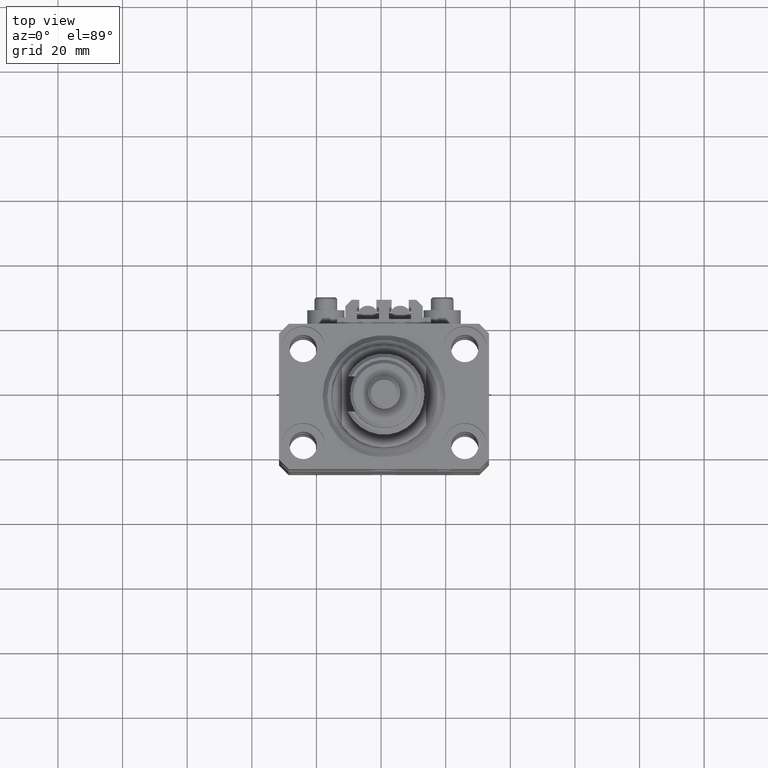
[diagram: clean part render]
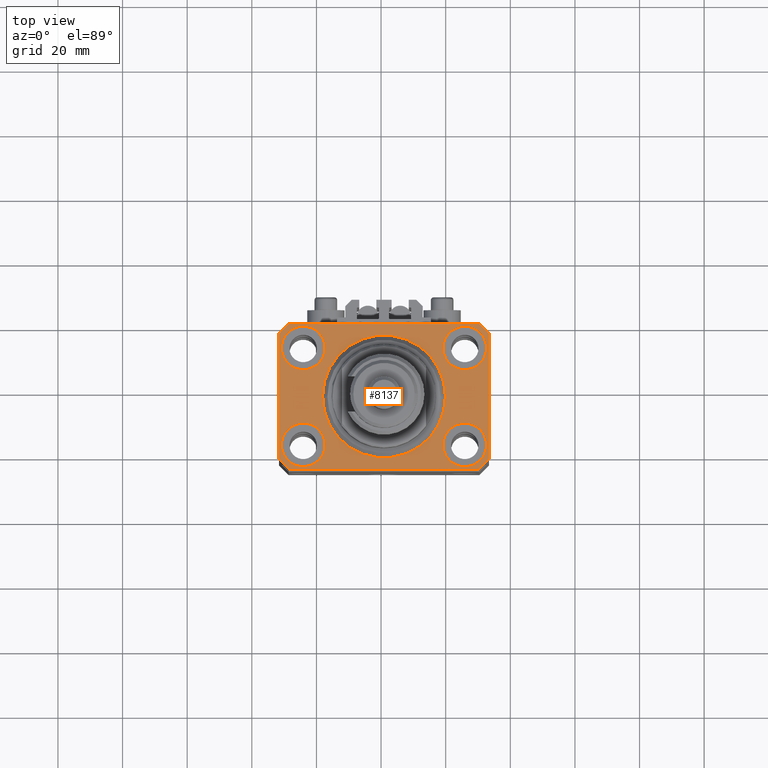
[diagram: same view with one face highlighted and labeled with its STEP entity id]
A machine part, top view. The second image highlights one B-rep face of the part: STEP entity #8137.
In plain terms, the highlighted planar face has unit normal (0, 0, 1).
Its self-contained STEP definition (entity closure, byte-faithful):
#85 = CARTESIAN_POINT ( 'NONE',  ( -25.00000000000000355, -15.00000000000000000, 0.000000000000000000 ) ) ;
#215 = EDGE_CURVE ( 'NONE', #37473, #30447, #42066, .T. ) ;
#601 = CARTESIAN_POINT ( 'NONE',  ( 25.00000000000000355, -15.00000000000000000, 0.000000000000000000 ) ) ;
#603 = CARTESIAN_POINT ( 'NONE',  ( 29.49999999999707967, 22.49999999999951328, 0.000000000000000000 ) ) ;
#609 = ORIENTED_EDGE ( 'NONE', *, *, #1809, .T. ) ;
#710 = CARTESIAN_POINT ( 'NONE',  ( -25.00000000000000355, -15.00000000000000000, 0.000000000000000000 ) ) ;
#771 = DIRECTION ( 'NONE',  ( 0.7071067811865474617, -0.7071067811865474617, 0.000000000000000000 ) ) ;
#1450 = VECTOR ( 'NONE', #771, 1000.000000000000114 ) ;
#1531 = CARTESIAN_POINT ( 'NONE',  ( -31.75000000004154899, -15.00000000000000000, 0.000000000000000000 ) ) ;
#1593 = DIRECTION ( 'NONE',  ( 0.000000000000000000, 0.000000000000000000, 1.000000000000000000 ) ) ;
#1809 = EDGE_CURVE ( 'NONE', #18172, #38828, #32464, .T. ) ;
#1980 = EDGE_CURVE ( 'NONE', #33427, #31919, #17866, .T. ) ;
#2312 = DIRECTION ( 'NONE',  ( 1.334402673828349134E-14, 1.000000000000000000, 0.000000000000000000 ) ) ;
#2717 = DIRECTION ( 'NONE',  ( -0.7071067811865352493, 0.7071067811865597852, 0.000000000000000000 ) ) ;
#3058 = EDGE_CURVE ( 'NONE', #3065, #40067, #12286, .T. ) ;
#3065 = VERTEX_POINT ( 'NONE', #3991 ) ;
#3074 = EDGE_CURVE ( 'NONE', #40067, #26871, #47875, .T. ) ;
#3204 = CIRCLE ( 'NONE', #19782, 6.750000000041541881 ) ;
#3522 = DIRECTION ( 'NONE',  ( 1.000000000000000000, 1.176083712526788232E-16, 0.000000000000000000 ) ) ;
#3676 = DIRECTION ( 'NONE',  ( 0.000000000000000000, 0.000000000000000000, 1.000000000000000000 ) ) ;
#3865 = ORIENTED_EDGE ( 'NONE', *, *, #8530, .T. ) ;
#3893 = CARTESIAN_POINT ( 'NONE',  ( -32.49999999999650413, -19.49999999999949907, 0.000000000000000000 ) ) ;
#3991 = CARTESIAN_POINT ( 'NONE',  ( 29.49999999999707967, 22.49999999999951328, 0.000000000000000000 ) ) ;
#4011 = CARTESIAN_POINT ( 'NONE',  ( 0.000000000000000000, 0.000000000000000000, 0.000000000000000000 ) ) ;
#4506 = EDGE_LOOP ( 'NONE', ( #36971, #8954 ) ) ;
#4559 = ORIENTED_EDGE ( 'NONE', *, *, #40001, .T. ) ;
#4616 = CARTESIAN_POINT ( 'NONE',  ( -31.75000000002253842, 15.00000000000000000, 0.000000000000000000 ) ) ;
#4795 = DIRECTION ( 'NONE',  ( 0.000000000000000000, -1.000000000000000000, 0.000000000000000000 ) ) ;
#5742 = CARTESIAN_POINT ( 'NONE',  ( -32.49999999999650413, -19.49999999999949907, 0.000000000000000000 ) ) ;
#6137 = EDGE_CURVE ( 'NONE', #30447, #37473, #29822, .T. ) ;
#6479 = VERTEX_POINT ( 'NONE', #1531 ) ;
#6580 = ORIENTED_EDGE ( 'NONE', *, *, #1980, .T. ) ;
#6653 = EDGE_CURVE ( 'NONE', #18545, #47043, #42324, .T. ) ;
#6856 = LINE ( 'NONE', #19070, #39891 ) ;
#7446 = ORIENTED_EDGE ( 'NONE', *, *, #22483, .T. ) ;
#7484 = CARTESIAN_POINT ( 'NONE',  ( -29.49999999999650413, -22.49999999999949907, 0.000000000000000000 ) ) ;
#7496 = AXIS2_PLACEMENT_3D ( 'NONE', #27907, #11288, #35464 ) ;
#7612 = CARTESIAN_POINT ( 'NONE',  ( 31.74999999995845101, 15.00000000000000888, 0.000000000000000000 ) ) ;
#7658 = LINE ( 'NONE', #7903, #40514 ) ;
#7903 = CARTESIAN_POINT ( 'NONE',  ( -32.49999999999650413, 19.49999999999949907, 0.000000000000000000 ) ) ;
#8137 = ADVANCED_FACE ( 'NONE', ( #24418, #40053, #20537, #19505, #43671, #39526 ), #48083, .T. ) ;
#8441 = CARTESIAN_POINT ( 'NONE',  ( -29.49999999999650413, 22.49999999999949907, 0.000000000000000000 ) ) ;
#8504 = DIRECTION ( 'NONE',  ( 1.000000000000000000, 0.000000000000000000, 0.000000000000000000 ) ) ;
#8530 = EDGE_CURVE ( 'NONE', #37669, #3065, #6856, .T. ) ;
#8875 = DIRECTION ( 'NONE',  ( 1.000000000000000000, 0.000000000000000000, 0.000000000000000000 ) ) ;
#8954 = ORIENTED_EDGE ( 'NONE', *, *, #215, .F. ) ;
#9120 = AXIS2_PLACEMENT_3D ( 'NONE', #10391, #38713, #26232 ) ;
#9406 = ORIENTED_EDGE ( 'NONE', *, *, #3074, .T. ) ;
#9698 = DIRECTION ( 'NONE',  ( 1.000000000000000000, 0.000000000000000000, 0.000000000000000000 ) ) ;
#9943 = AXIS2_PLACEMENT_3D ( 'NONE', #43069, #40723, #8504 ) ;
#10391 = CARTESIAN_POINT ( 'NONE',  ( 24.99999999999999645, 15.00000000000000888, 0.000000000000000000 ) ) ;
#11254 = VERTEX_POINT ( 'NONE', #48063 ) ;
#11288 = DIRECTION ( 'NONE',  ( 0.000000000000000000, 0.000000000000000000, 1.000000000000000000 ) ) ;
#11397 = EDGE_CURVE ( 'NONE', #31919, #37669, #29074, .T. ) ;
#12286 = LINE ( 'NONE', #603, #31375 ) ;
#12700 = EDGE_CURVE ( 'NONE', #47043, #18545, #24474, .T. ) ;
#14905 = CARTESIAN_POINT ( 'NONE',  ( -32.49999999999650413, 19.49999999999949907, 0.000000000000000000 ) ) ;
#14939 = CIRCLE ( 'NONE', #7496, 6.749999999958452790 ) ;
#14971 = AXIS2_PLACEMENT_3D ( 'NONE', #39270, #3676, #40296 ) ;
#14984 = EDGE_CURVE ( 'NONE', #45646, #6479, #44480, .T. ) ;
#15258 = CARTESIAN_POINT ( 'NONE',  ( -18.24999999995846167, -15.00000000000000000, 0.000000000000000000 ) ) ;
#15293 = CARTESIAN_POINT ( 'NONE',  ( 18.25000000002253842, -15.00000000000000000, 0.000000000000000000 ) ) ;
#16442 = DIRECTION ( 'NONE',  ( 1.000000000000000000, 0.000000000000000000, 0.000000000000000000 ) ) ;
#16469 = CARTESIAN_POINT ( 'NONE',  ( 25.00000000000000355, -15.00000000000000000, 0.000000000000000000 ) ) ;
#16729 = DIRECTION ( 'NONE',  ( 1.000000000000000000, 0.000000000000000000, 0.000000000000000000 ) ) ;
#17836 = EDGE_LOOP ( 'NONE', ( #20415, #18107 ) ) ;
#17866 = LINE ( 'NONE', #42546, #42139 ) ;
#18107 = ORIENTED_EDGE ( 'NONE', *, *, #47650, .F. ) ;
#18172 = VERTEX_POINT ( 'NONE', #5742 ) ;
#18295 = EDGE_LOOP ( 'NONE', ( #39579, #49934 ) ) ;
#18545 = VERTEX_POINT ( 'NONE', #44402 ) ;
#18634 = DIRECTION ( 'NONE',  ( 0.7071067811865483499, 0.7071067811865466846, 0.000000000000000000 ) ) ;
#19070 = CARTESIAN_POINT ( 'NONE',  ( 32.49999999999702993, 19.49999999999945999, 0.000000000000000000 ) ) ;
#19505 = FACE_BOUND ( 'NONE', #21359, .T. ) ;
#19782 = AXIS2_PLACEMENT_3D ( 'NONE', #85, #32540, #8875 ) ;
#19851 = DIRECTION ( 'NONE',  ( 1.000000000000000000, 0.000000000000000000, 0.000000000000000000 ) ) ;
#20415 = ORIENTED_EDGE ( 'NONE', *, *, #47351, .F. ) ;
#20537 = FACE_BOUND ( 'NONE', #18295, .T. ) ;
#21359 = EDGE_LOOP ( 'NONE', ( #39181, #30833 ) ) ;
#22181 = VECTOR ( 'NONE', #3522, 1000.000000000000000 ) ;
#22483 = EDGE_CURVE ( 'NONE', #26871, #18172, #7658, .T. ) ;
#22740 = DIRECTION ( 'NONE',  ( 1.000000000000000000, 0.000000000000000000, 0.000000000000000000 ) ) ;
#23051 = VECTOR ( 'NONE', #43472, 1000.000000000000114 ) ;
#23241 = LINE ( 'NONE', #34699, #22181 ) ;
#23481 = DIRECTION ( 'NONE',  ( 0.000000000000000000, 0.000000000000000000, 1.000000000000000000 ) ) ;
#23520 = DIRECTION ( 'NONE',  ( 0.000000000000000000, 0.000000000000000000, 1.000000000000000000 ) ) ;
#24418 = FACE_BOUND ( 'NONE', #40694, .T. ) ;
#24474 = CIRCLE ( 'NONE', #26135, 6.750000000022533087 ) ;
#24811 = CIRCLE ( 'NONE', #45557, 6.749999999977465137 ) ;
#26135 = AXIS2_PLACEMENT_3D ( 'NONE', #26387, #23520, #22740 ) ;
#26232 = DIRECTION ( 'NONE',  ( 1.000000000000000000, 0.000000000000000000, 0.000000000000000000 ) ) ;
#26387 = CARTESIAN_POINT ( 'NONE',  ( -25.00000000000000355, 15.00000000000000000, 0.000000000000000000 ) ) ;
#26871 = VERTEX_POINT ( 'NONE', #14905 ) ;
#27907 = CARTESIAN_POINT ( 'NONE',  ( 24.99999999999999645, 15.00000000000000888, 0.000000000000000000 ) ) ;
#29074 = LINE ( 'NONE', #49078, #36841 ) ;
#29822 = CIRCLE ( 'NONE', #43967, 19.00000000000000000 ) ;
#30122 = ORIENTED_EDGE ( 'NONE', *, *, #3058, .T. ) ;
#30447 = VERTEX_POINT ( 'NONE', #38334 ) ;
#30833 = ORIENTED_EDGE ( 'NONE', *, *, #12700, .F. ) ;
#31375 = VECTOR ( 'NONE', #31780, 1000.000000000000000 ) ;
#31535 = CIRCLE ( 'NONE', #9120, 6.749999999958452790 ) ;
#31780 = DIRECTION ( 'NONE',  ( -1.000000000000000000, -2.352167425053553784E-16, 0.000000000000000000 ) ) ;
#31919 = VERTEX_POINT ( 'NONE', #32735 ) ;
#31946 = CARTESIAN_POINT ( 'NONE',  ( -19.00000000000000000, 2.326828918379970970E-15, 0.000000000000000000 ) ) ;
#32290 = DIRECTION ( 'NONE',  ( 0.000000000000000000, 0.000000000000000000, 1.000000000000000000 ) ) ;
#32464 = LINE ( 'NONE', #3893, #1450 ) ;
#32540 = DIRECTION ( 'NONE',  ( 0.000000000000000000, 0.000000000000000000, 1.000000000000000000 ) ) ;
#32735 = CARTESIAN_POINT ( 'NONE',  ( 32.49999999999651124, -19.49999999999949196, 0.000000000000000000 ) ) ;
#33289 = DIRECTION ( 'NONE',  ( 1.000000000000000000, 0.000000000000000000, 0.000000000000000000 ) ) ;
#33427 = VERTEX_POINT ( 'NONE', #37390 ) ;
#34161 = ORIENTED_EDGE ( 'NONE', *, *, #11397, .T. ) ;
#34563 = AXIS2_PLACEMENT_3D ( 'NONE', #4011, #51277, #19851 ) ;
#34699 = CARTESIAN_POINT ( 'NONE',  ( -29.49999999999650413, -22.49999999999949907, 0.000000000000000000 ) ) ;
#35464 = DIRECTION ( 'NONE',  ( 1.000000000000000000, 0.000000000000000000, 0.000000000000000000 ) ) ;
#35949 = CARTESIAN_POINT ( 'NONE',  ( -29.49999999999650413, 22.49999999999949907, 0.000000000000000000 ) ) ;
#36173 = CARTESIAN_POINT ( 'NONE',  ( 0.000000000000000000, 0.000000000000000000, 0.000000000000000000 ) ) ;
#36841 = VECTOR ( 'NONE', #2312, 1000.000000000000000 ) ;
#36971 = ORIENTED_EDGE ( 'NONE', *, *, #6137, .F. ) ;
#37390 = CARTESIAN_POINT ( 'NONE',  ( 29.49999999999650413, -22.49999999999949196, 0.000000000000000000 ) ) ;
#37473 = VERTEX_POINT ( 'NONE', #31946 ) ;
#37669 = VERTEX_POINT ( 'NONE', #37901 ) ;
#37901 = CARTESIAN_POINT ( 'NONE',  ( 32.49999999999702993, 19.49999999999945999, 0.000000000000000000 ) ) ;
#38334 = CARTESIAN_POINT ( 'NONE',  ( 19.00000000000000000, 0.000000000000000000, 0.000000000000000000 ) ) ;
#38713 = DIRECTION ( 'NONE',  ( 0.000000000000000000, 0.000000000000000000, 1.000000000000000000 ) ) ;
#38828 = VERTEX_POINT ( 'NONE', #7484 ) ;
#39181 = ORIENTED_EDGE ( 'NONE', *, *, #6653, .F. ) ;
#39270 = CARTESIAN_POINT ( 'NONE',  ( 0.000000000000000000, 0.000000000000000000, 0.000000000000000000 ) ) ;
#39473 = CARTESIAN_POINT ( 'NONE',  ( 18.25000000004154543, 15.00000000000000888, 0.000000000000000000 ) ) ;
#39526 = FACE_OUTER_BOUND ( 'NONE', #48594, .T. ) ;
#39579 = ORIENTED_EDGE ( 'NONE', *, *, #49883, .F. ) ;
#39891 = VECTOR ( 'NONE', #2717, 1000.000000000000000 ) ;
#39954 = DIRECTION ( 'NONE',  ( 0.000000000000000000, 0.000000000000000000, 1.000000000000000000 ) ) ;
#40001 = EDGE_CURVE ( 'NONE', #38828, #33427, #23241, .T. ) ;
#40053 = FACE_BOUND ( 'NONE', #17836, .T. ) ;
#40067 = VERTEX_POINT ( 'NONE', #8441 ) ;
#40296 = DIRECTION ( 'NONE',  ( 1.000000000000000000, 0.000000000000000000, -0.000000000000000000 ) ) ;
#40514 = VECTOR ( 'NONE', #4795, 1000.000000000000000 ) ;
#40694 = EDGE_LOOP ( 'NONE', ( #49717, #42280 ) ) ;
#40723 = DIRECTION ( 'NONE',  ( 0.000000000000000000, 0.000000000000000000, 1.000000000000000000 ) ) ;
#42066 = CIRCLE ( 'NONE', #34563, 19.00000000000000000 ) ;
#42125 = VERTEX_POINT ( 'NONE', #7612 ) ;
#42139 = VECTOR ( 'NONE', #18634, 1000.000000000000000 ) ;
#42254 = AXIS2_PLACEMENT_3D ( 'NONE', #16469, #23481, #16729 ) ;
#42280 = ORIENTED_EDGE ( 'NONE', *, *, #46252, .F. ) ;
#42324 = CIRCLE ( 'NONE', #9943, 6.750000000022533087 ) ;
#42546 = CARTESIAN_POINT ( 'NONE',  ( 29.49999999999650413, -22.49999999999949196, 0.000000000000000000 ) ) ;
#43069 = CARTESIAN_POINT ( 'NONE',  ( -25.00000000000000355, 15.00000000000000000, 0.000000000000000000 ) ) ;
#43472 = DIRECTION ( 'NONE',  ( -0.7071067811865474617, -0.7071067811865474617, 0.000000000000000000 ) ) ;
#43671 = FACE_BOUND ( 'NONE', #4506, .T. ) ;
#43967 = AXIS2_PLACEMENT_3D ( 'NONE', #36173, #1593, #33289 ) ;
#44402 = CARTESIAN_POINT ( 'NONE',  ( -18.24999999997747224, 15.00000000000000000, 0.000000000000000000 ) ) ;
#44480 = CIRCLE ( 'NONE', #51098, 6.750000000041541881 ) ;
#44493 = VERTEX_POINT ( 'NONE', #15293 ) ;
#44741 = CIRCLE ( 'NONE', #42254, 6.749999999977465137 ) ;
#45557 = AXIS2_PLACEMENT_3D ( 'NONE', #601, #32290, #16442 ) ;
#45646 = VERTEX_POINT ( 'NONE', #15258 ) ;
#46252 = EDGE_CURVE ( 'NONE', #6479, #45646, #3204, .T. ) ;
#47043 = VERTEX_POINT ( 'NONE', #4616 ) ;
#47351 = EDGE_CURVE ( 'NONE', #11254, #44493, #24811, .T. ) ;
#47650 = EDGE_CURVE ( 'NONE', #44493, #11254, #44741, .T. ) ;
#47875 = LINE ( 'NONE', #35949, #23051 ) ;
#48063 = CARTESIAN_POINT ( 'NONE',  ( 31.74999999997746869, -15.00000000000000000, 0.000000000000000000 ) ) ;
#48083 = PLANE ( 'NONE',  #14971 ) ;
#48594 = EDGE_LOOP ( 'NONE', ( #30122, #9406, #7446, #609, #4559, #6580, #34161, #3865 ) ) ;
#49078 = CARTESIAN_POINT ( 'NONE',  ( 32.49999999999651124, -19.49999999999949196, 0.000000000000000000 ) ) ;
#49181 = EDGE_CURVE ( 'NONE', #50941, #42125, #31535, .T. ) ;
#49717 = ORIENTED_EDGE ( 'NONE', *, *, #14984, .F. ) ;
#49883 = EDGE_CURVE ( 'NONE', #42125, #50941, #14939, .T. ) ;
#49934 = ORIENTED_EDGE ( 'NONE', *, *, #49181, .F. ) ;
#50941 = VERTEX_POINT ( 'NONE', #39473 ) ;
#51098 = AXIS2_PLACEMENT_3D ( 'NONE', #710, #39954, #9698 ) ;
#51277 = DIRECTION ( 'NONE',  ( 0.000000000000000000, 0.000000000000000000, 1.000000000000000000 ) ) ;